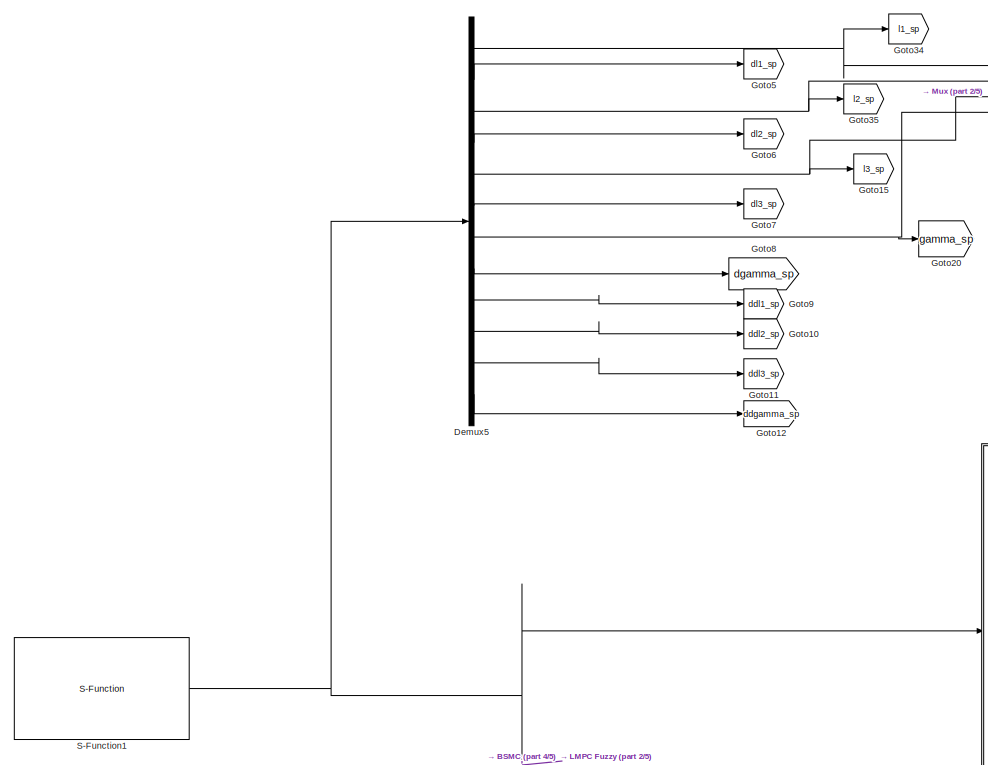
[diagram: root canvas - part 1/5, top left region]
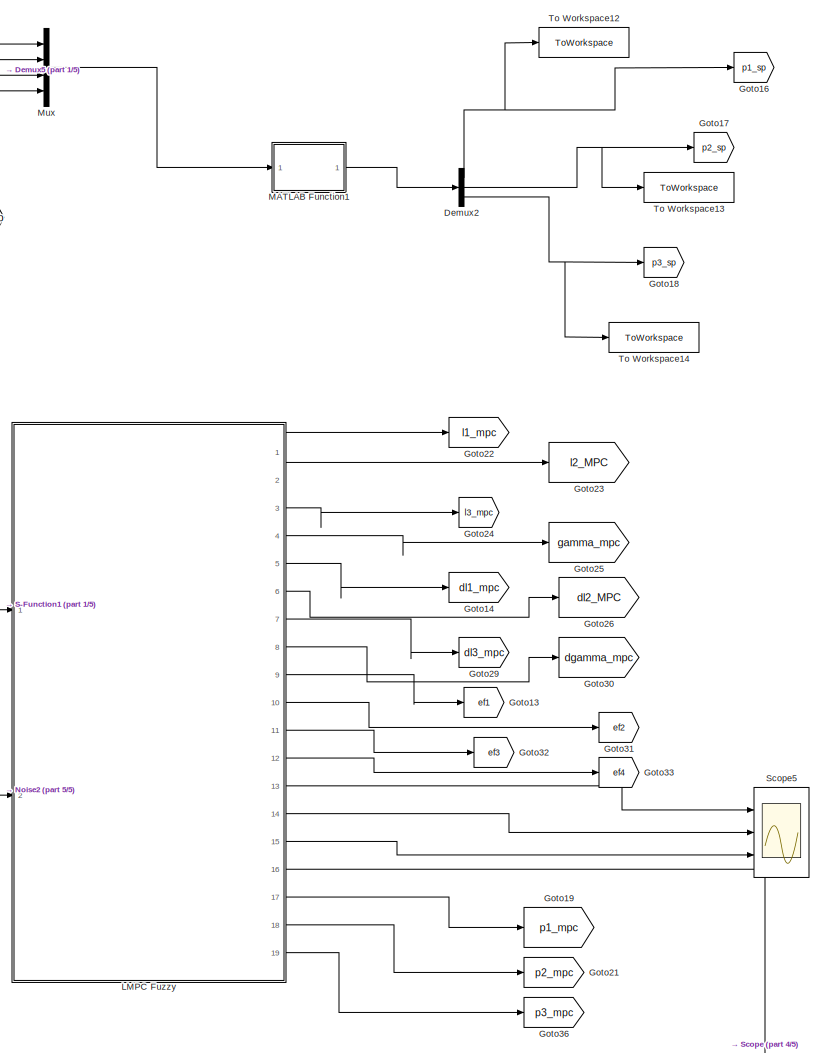
[diagram: root canvas - part 2/5, top center region]
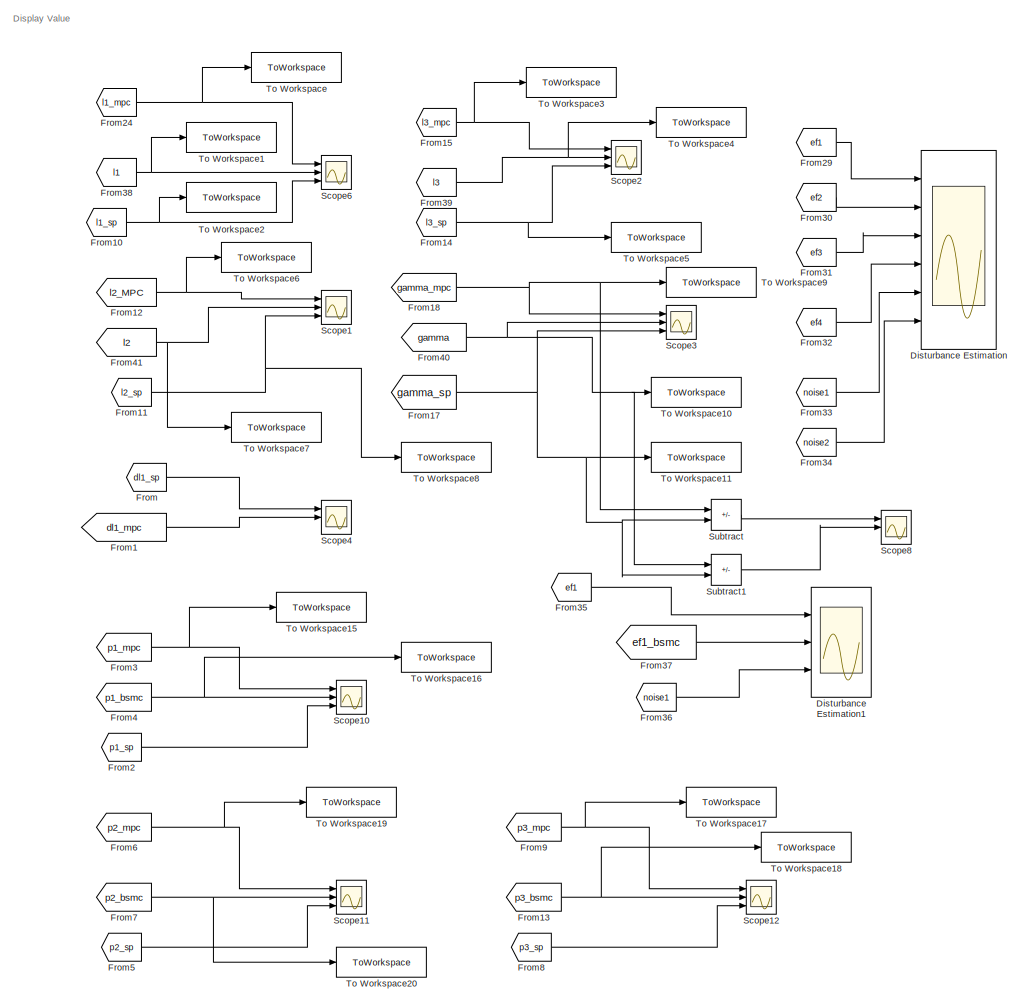
[diagram: root canvas - part 3/5, bottom right region]
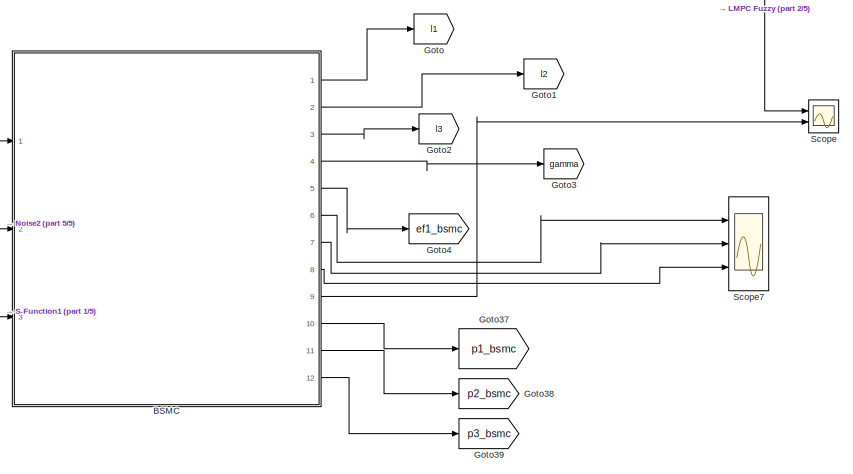
[diagram: root canvas - part 4/5, bottom center region]
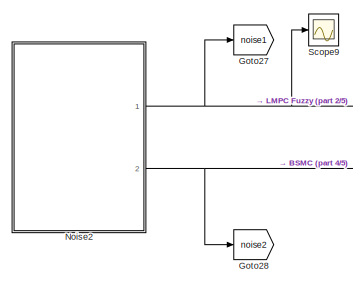
[diagram: root canvas - part 5/5, bottom left region]
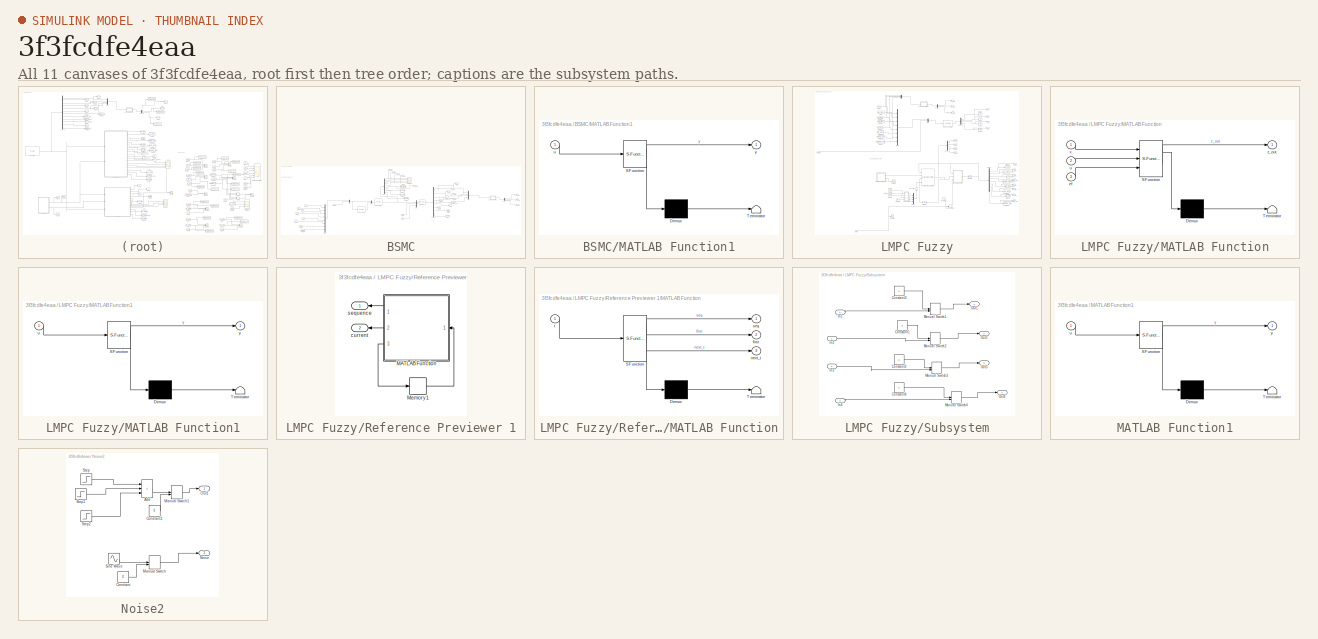
[diagram: thumbnail index - all 11 canvases of the model, root first then tree order]
MODEL slx_3f3fcdfe4eaa
KIND model
CONFIG AbsTol = auto
CONFIG EnableMultiTasking = off
CONFIG FixedStep = Ts
CONFIG MaxStep = auto
CONFIG MinStep = auto
CONFIG RelTol = 1e-3
CONFIG SampleTimeConstraint = Unconstrained
CONFIG SolverName = ode5
CONFIG StartTime = 0.0
CONFIG StopTime = 5
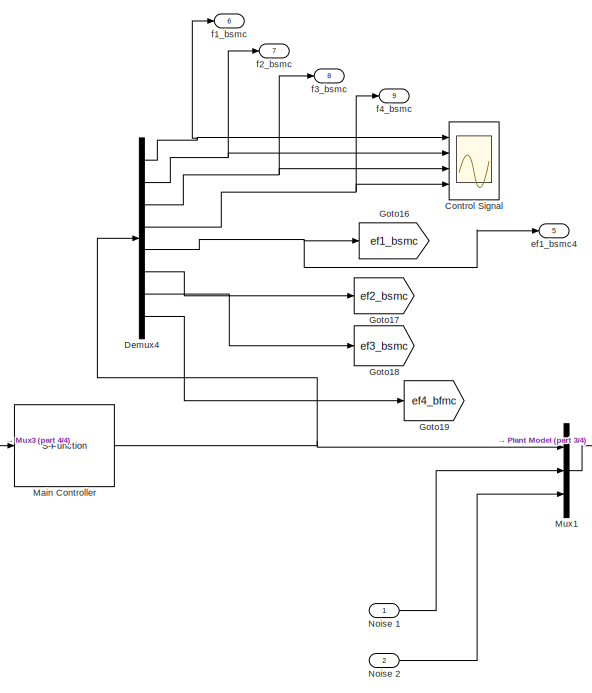
[diagram: BSMC - part 1/4, center side, full height]
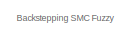
[diagram: BSMC - part 2/4, top left region]
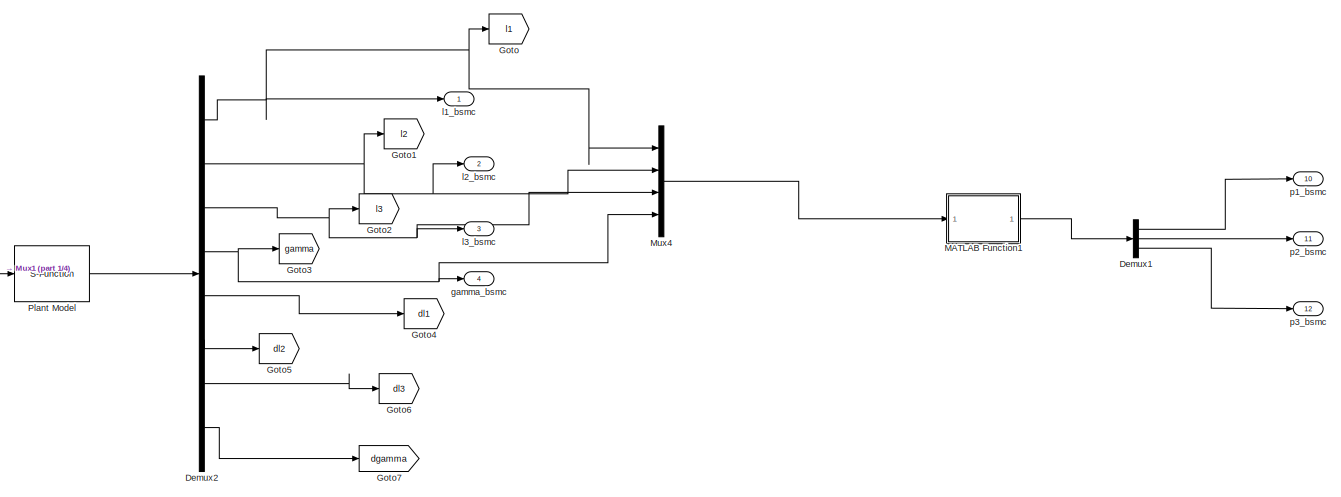
[diagram: BSMC - part 3/4, middle right region]
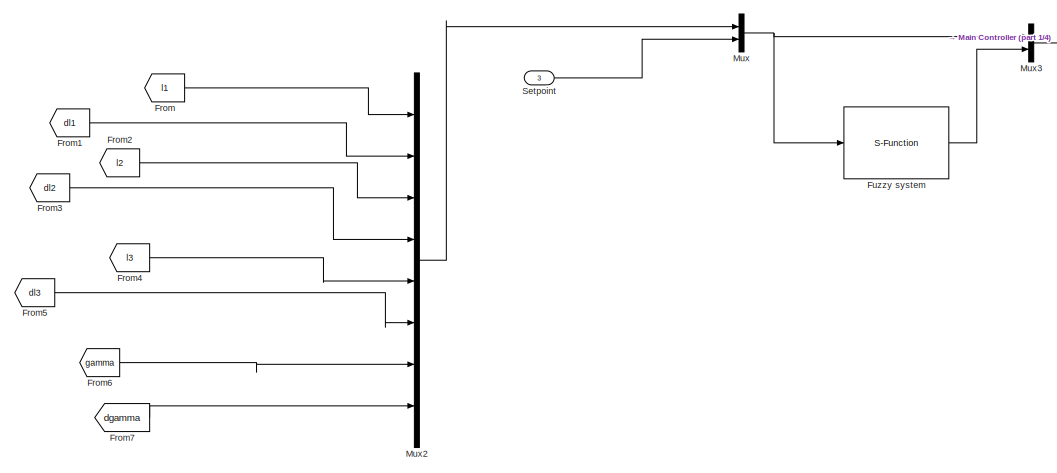
[diagram: BSMC - part 4/4, bottom left region]
BLOCK [SubSystem] BSMC
  Ports = [3, 12]
  RequestExecContextInheritance = off
BLOCK [Scope] BSMC/Control Signal
  Floating = off
  NumInputPorts = 4
  Ports = [4]
  ScopeSpecificationString = Simulink.scopes.TimeScopeBlockCfg('CurrentConfiguration', extmgr.ConfigurationSet(extmgr.Configuration('Core','General UI',true),extmgr.Configuration('Core','Source UI',true),extmgr.Configuration('Sources','WiredSimulink',true,'DataLoggingVariableName','ScopeData1'),extmgr.Configuration('Visuals','Time Domain',true,'SerializedDisplays',{struct('MinYLimReal','-9.11577','MaxYLimReal','9.09701','YLab...<+1479ch>
BLOCK [Demux] BSMC/Demux1
  Outputs = 3
  Ports = [1, 3]
BLOCK [Demux] BSMC/Demux2
  Outputs = 8
  Ports = [1, 8]
BLOCK [Demux] BSMC/Demux4
  Outputs = 8
  Ports = [1, 8]
BLOCK [From] BSMC/From
  GotoTag = l1
BLOCK [From] BSMC/From1
  GotoTag = dl1
BLOCK [From] BSMC/From2
  GotoTag = l2
BLOCK [From] BSMC/From3
  GotoTag = dl2
BLOCK [From] BSMC/From4
  GotoTag = l3
BLOCK [From] BSMC/From5
  GotoTag = dl3
BLOCK [From] BSMC/From6
  GotoTag = gamma
BLOCK [From] BSMC/From7
  GotoTag = dgamma
BLOCK [S-Function] BSMC/Fuzzy system
  EnableBusSupport = off
  FunctionName = cds_fuzzy_bsmc_sigma
  Ports = [1, 1]
  SFcnIsStateOwnerBlock = off
  SFunctionDeploymentMode = off
BLOCK [Goto] BSMC/Goto
  GotoTag = l1
BLOCK [Goto] BSMC/Goto1
  GotoTag = l2
BLOCK [Goto] BSMC/Goto16
  GotoTag = ef1_bsmc
BLOCK [Goto] BSMC/Goto17
  GotoTag = ef2_bsmc
BLOCK [Goto] BSMC/Goto18
  GotoTag = ef3_bsmc
BLOCK [Goto] BSMC/Goto19
  GotoTag = ef4_bfmc
BLOCK [Goto] BSMC/Goto2
  GotoTag = l3
BLOCK [Goto] BSMC/Goto3
  GotoTag = gamma
BLOCK [Goto] BSMC/Goto4
  GotoTag = dl1
BLOCK [Goto] BSMC/Goto5
  GotoTag = dl2
BLOCK [Goto] BSMC/Goto6
  GotoTag = dl3
BLOCK [Goto] BSMC/Goto7
  GotoTag = dgamma
BLOCK [SubSystem] BSMC/MATLAB Function1
  ErrorFcn = Stateflow.Translate.translate
  PermitHierarchicalResolution = ExplicitOnly
  Ports = [1, 1]
  RequestExecContextInheritance = off
  SFBlockType = MATLAB Function
  TreatAsAtomicUnit = on
BLOCK [Demux] BSMC/MATLAB Function1/ Demux 
  Outputs = 1
  Ports = [1, 1]
BLOCK [S-Function] BSMC/MATLAB Function1/ SFunction 
  EnableBusSupport = on
  FunctionName = sf_sfun
  PortCounts = [1 2]
  Ports = [1, 2]
  SFcnIsStateOwnerBlock = off
  SFunctionDeploymentMode = off
  Tag = Stateflow S-Function 4
BLOCK [Terminator] BSMC/MATLAB Function1/ Terminator 
BLOCK [Inport] BSMC/MATLAB Function1/u
BLOCK [Outport] BSMC/MATLAB Function1/y
BLOCK [S-Function] BSMC/Main Controller
  EnableBusSupport = off
  FunctionName = cds_main_bsmc_sigma
  Ports = [1, 1]
  SFcnIsStateOwnerBlock = off
  SFunctionDeploymentMode = off
BLOCK [Mux] BSMC/Mux
  DisplayOption = bar
  Inputs = 2
  Ports = [2, 1]
BLOCK [Mux] BSMC/Mux1
  DisplayOption = bar
  Inputs = 3
  Ports = [3, 1]
BLOCK [Mux] BSMC/Mux2
  DisplayOption = bar
  Inputs = 8
  Ports = [8, 1]
BLOCK [Mux] BSMC/Mux3
  DisplayOption = bar
  Inputs = 2
  Ports = [2, 1]
BLOCK [Mux] BSMC/Mux4
  DisplayOption = bar
  Ports = [4, 1]
BLOCK [Inport] BSMC/Noise 1
BLOCK [Inport] BSMC/Noise 2
  Port = 2
BLOCK [S-Function] BSMC/Plant Model
  EnableBusSupport = off
  FunctionName = cds_plant_sigma
  Ports = [1, 1]
  SFcnIsStateOwnerBlock = off
  SFunctionDeploymentMode = off
BLOCK [Inport] BSMC/Setpoint
  Port = 3
BLOCK [Outport] BSMC/ef1_bsmc4
  Port = 5
BLOCK [Outport] BSMC/f1_bsmc
  Port = 6
BLOCK [Outport] BSMC/f2_bsmc
  Port = 7
BLOCK [Outport] BSMC/f3_bsmc
  Port = 8
BLOCK [Outport] BSMC/f4_bsmc
  Port = 9
BLOCK [Outport] BSMC/gamma_bsmc
  Port = 4
BLOCK [Outport] BSMC/l1_bsmc
BLOCK [Outport] BSMC/l2_bsmc
  Port = 2
BLOCK [Outport] BSMC/l3_bsmc
  Port = 3
BLOCK [Outport] BSMC/p1_bsmc
  Port = 10
BLOCK [Outport] BSMC/p2_bsmc
  Port = 11
BLOCK [Outport] BSMC/p3_bsmc
  Port = 12
BLOCK [Demux] Demux2
  Outputs = 3
  Ports = [1, 3]
BLOCK [Demux] Demux5
  Outputs = 12
  Ports = [1, 12]
BLOCK [Scope] Disturbance Estimation
  Floating = off
  NumInputPorts = 6
  Ports = [6]
  ScopeSpecificationString = Simulink.scopes.TimeScopeBlockCfg('CurrentConfiguration', extmgr.ConfigurationSet(extmgr.Configuration('Core','General UI',true),extmgr.Configuration('Core','Source UI',true),extmgr.Configuration('Sources','WiredSimulink',true,'DataLoggingVariableName','ScopeData3'),extmgr.Configuration('Visuals','Time Domain',true,'SerializedDisplays',{struct('MinYLimReal','-41.59673','MaxYLimReal','73.97439','YL...<+1641ch>
BLOCK [Scope] Disturbance Estimation1
  Floating = off
  NumInputPorts = 3
  Ports = [3]
  ScopeSpecificationString = Simulink.scopes.TimeScopeBlockCfg('CurrentConfiguration', extmgr.ConfigurationSet(extmgr.Configuration('Core','General UI',true,'FigureColor',[1 1 1]),extmgr.Configuration('Core','Source UI',true),extmgr.Configuration('Sources','WiredSimulink',true),extmgr.Configuration('Visuals','Time Domain',true,'SerializedDisplays',{struct('MinYLimReal','-55.28582','MaxYLimReal','90.7569','YLabelReal','','MinY...<+1863ch>
BLOCK [From] From
  GotoTag = dl1_sp
BLOCK [From] From1
  GotoTag = dl1_mpc
BLOCK [From] From10
  GotoTag = l1_sp
BLOCK [From] From11
  GotoTag = l2_sp
BLOCK [From] From12
  GotoTag = l2_MPC
BLOCK [From] From13
  GotoTag = p3_bsmc
BLOCK [From] From14
  GotoTag = l3_sp
BLOCK [From] From15
  GotoTag = l3_mpc
BLOCK [From] From17
  GotoTag = gamma_sp
BLOCK [From] From18
  GotoTag = gamma_mpc
BLOCK [From] From2
  GotoTag = p1_sp
BLOCK [From] From24
  GotoTag = l1_mpc
BLOCK [From] From29
  GotoTag = ef1
BLOCK [From] From3
  GotoTag = p1_mpc
BLOCK [From] From30
  GotoTag = ef2
BLOCK [From] From31
  GotoTag = ef3
BLOCK [From] From32
  GotoTag = ef4
BLOCK [From] From33
  GotoTag = noise1
BLOCK [From] From34
  GotoTag = noise2
BLOCK [From] From35
  GotoTag = ef1
BLOCK [From] From36
  GotoTag = noise1
BLOCK [From] From37
  GotoTag = ef1_bsmc
BLOCK [From] From38
  GotoTag = l1
BLOCK [From] From39
  GotoTag = l3
BLOCK [From] From4
  GotoTag = p1_bsmc
BLOCK [From] From40
  GotoTag = gamma
BLOCK [From] From41
  GotoTag = l2
BLOCK [From] From5
  GotoTag = p2_sp
BLOCK [From] From6
  GotoTag = p2_mpc
BLOCK [From] From7
  GotoTag = p2_bsmc
BLOCK [From] From8
  GotoTag = p3_sp
BLOCK [From] From9
  GotoTag = p3_mpc
BLOCK [Goto] Goto
  GotoTag = l1
BLOCK [Goto] Goto1
  GotoTag = l2
BLOCK [Goto] Goto10
  GotoTag = ddl2_sp
BLOCK [Goto] Goto11
  GotoTag = ddl3_sp
BLOCK [Goto] Goto12
  GotoTag = ddgamma_sp
BLOCK [Goto] Goto13
  GotoTag = ef1
BLOCK [Goto] Goto14
  GotoTag = dl1_mpc
BLOCK [Goto] Goto15
  GotoTag = l3_sp
BLOCK [Goto] Goto16
  GotoTag = p1_sp
BLOCK [Goto] Goto17
  GotoTag = p2_sp
BLOCK [Goto] Goto18
  GotoTag = p3_sp
BLOCK [Goto] Goto19
  GotoTag = p1_mpc
BLOCK [Goto] Goto2
  GotoTag = l3
BLOCK [Goto] Goto20
  GotoTag = gamma_sp
BLOCK [Goto] Goto21
  GotoTag = p2_mpc
BLOCK [Goto] Goto22
  GotoTag = l1_mpc
BLOCK [Goto] Goto23
  GotoTag = l2_MPC
BLOCK [Goto] Goto24
  GotoTag = l3_mpc
BLOCK [Goto] Goto25
  GotoTag = gamma_mpc
BLOCK [Goto] Goto26
  GotoTag = dl2_MPC
BLOCK [Goto] Goto27
  GotoTag = noise1
BLOCK [Goto] Goto28
  GotoTag = noise2
BLOCK [Goto] Goto29
  GotoTag = dl3_mpc
BLOCK [Goto] Goto3
  GotoTag = gamma
BLOCK [Goto] Goto30
  GotoTag = dgamma_mpc
BLOCK [Goto] Goto31
  GotoTag = ef2
BLOCK [Goto] Goto32
  GotoTag = ef3
BLOCK [Goto] Goto33
  GotoTag = ef4
BLOCK [Goto] Goto34
  GotoTag = l1_sp
BLOCK [Goto] Goto35
  GotoTag = l2_sp
BLOCK [Goto] Goto36
  GotoTag = p3_mpc
BLOCK [Goto] Goto37
  GotoTag = p1_bsmc
BLOCK [Goto] Goto38
  GotoTag = p2_bsmc
BLOCK [Goto] Goto39
  GotoTag = p3_bsmc
BLOCK [Goto] Goto4
  GotoTag = ef1_bsmc
BLOCK [Goto] Goto5
  GotoTag = dl1_sp
BLOCK [Goto] Goto6
  GotoTag = dl2_sp
BLOCK [Goto] Goto7
  GotoTag = dl3_sp
BLOCK [Goto] Goto8
  GotoTag = dgamma_sp
BLOCK [Goto] Goto9
  GotoTag = ddl1_sp
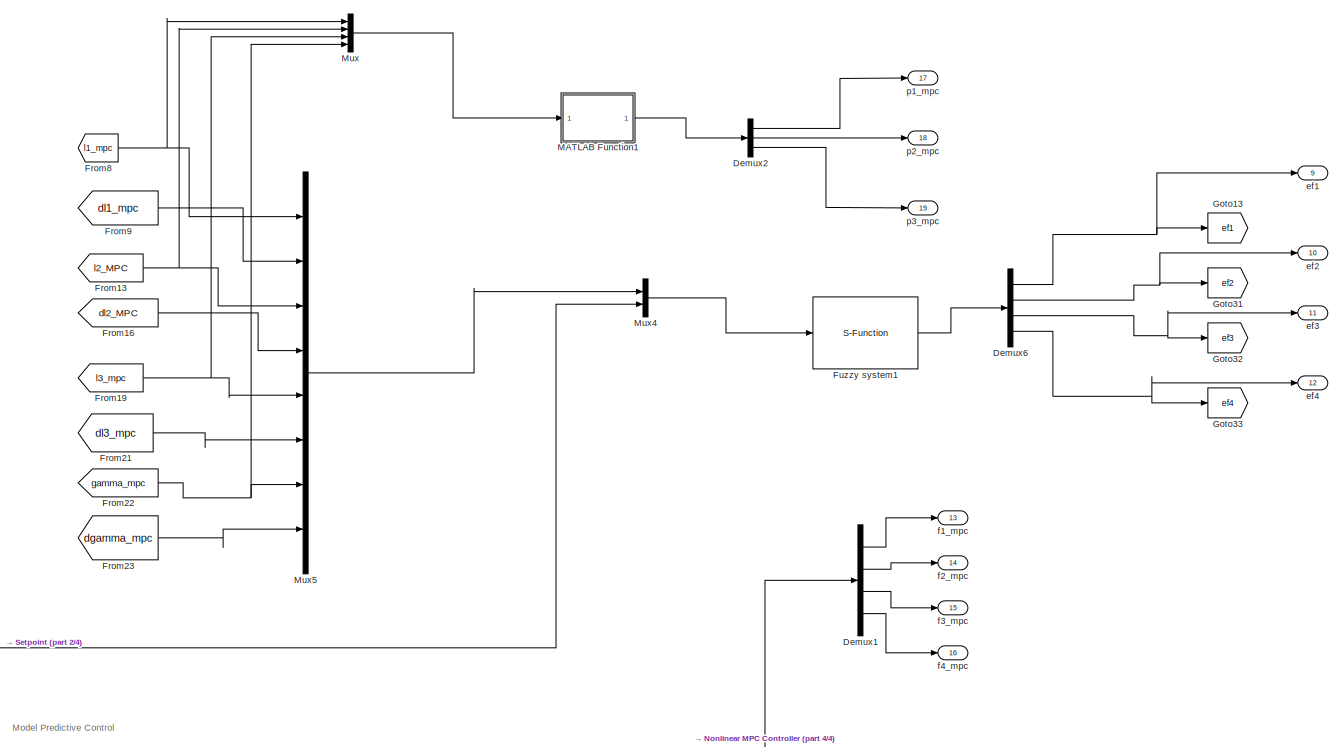
[diagram: LMPC Fuzzy - part 1/4, top center region]
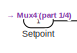
[diagram: LMPC Fuzzy - part 2/4, middle left region]
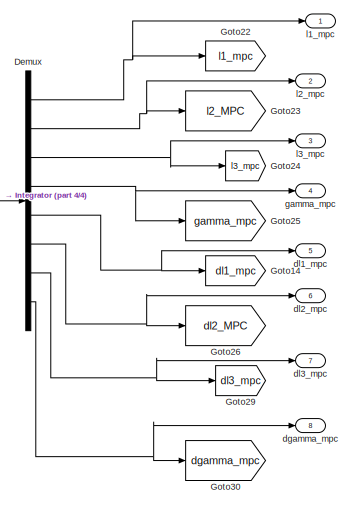
[diagram: LMPC Fuzzy - part 3/4, middle right region]
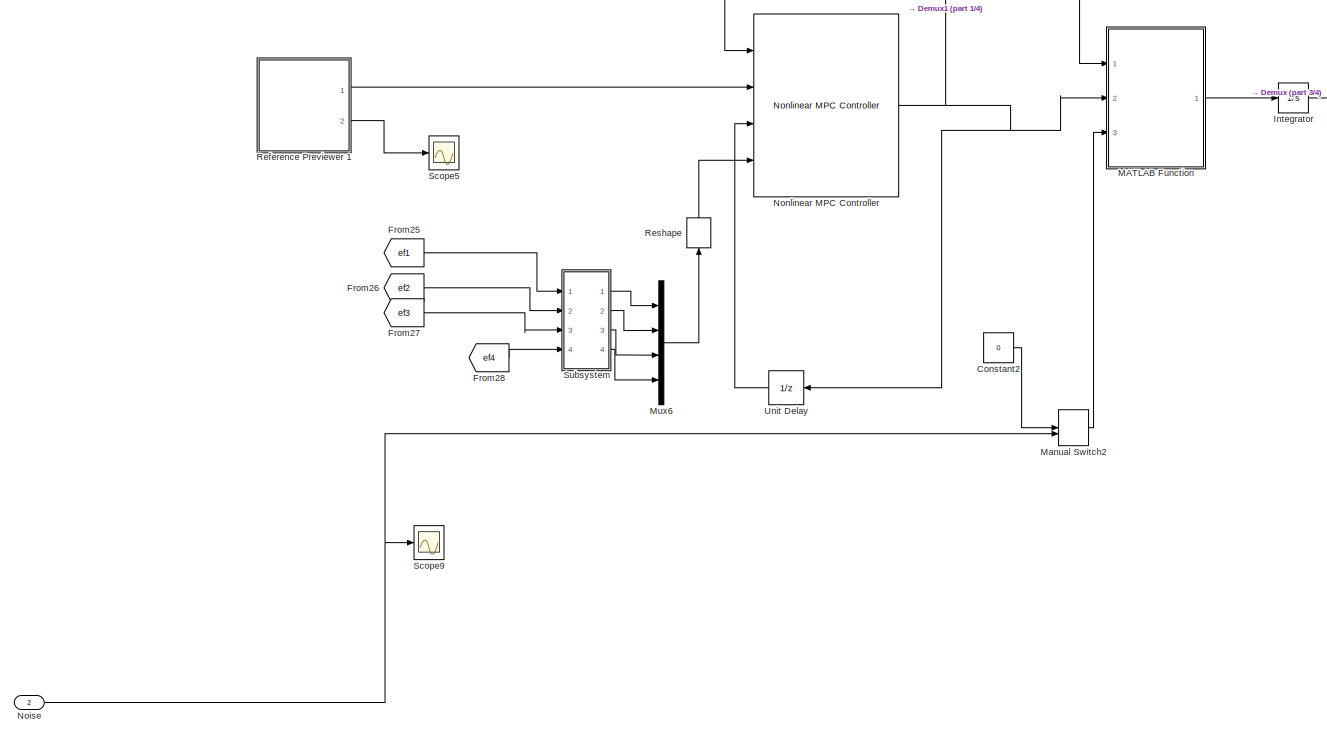
[diagram: LMPC Fuzzy - part 4/4, bottom center region]
BLOCK [SubSystem] LMPC Fuzzy
  Ports = [2, 19]
  RequestExecContextInheritance = off
BLOCK [Constant] LMPC Fuzzy/Constant2
  Value = 0
BLOCK [Demux] LMPC Fuzzy/Demux
  Outputs = 8
  Ports = [1, 8]
BLOCK [Demux] LMPC Fuzzy/Demux1
  Ports = [1, 4]
BLOCK [Demux] LMPC Fuzzy/Demux2
  Outputs = 3
  Ports = [1, 3]
BLOCK [Demux] LMPC Fuzzy/Demux6
  Ports = [1, 4]
BLOCK [From] LMPC Fuzzy/From13
  GotoTag = l2_MPC
BLOCK [From] LMPC Fuzzy/From16
  GotoTag = dl2_MPC
BLOCK [From] LMPC Fuzzy/From19
  GotoTag = l3_mpc
BLOCK [From] LMPC Fuzzy/From21
  GotoTag = dl3_mpc
BLOCK [From] LMPC Fuzzy/From22
  GotoTag = gamma_mpc
BLOCK [From] LMPC Fuzzy/From23
  GotoTag = dgamma_mpc
BLOCK [From] LMPC Fuzzy/From25
  GotoTag = ef1
BLOCK [From] LMPC Fuzzy/From26
  GotoTag = ef2
BLOCK [From] LMPC Fuzzy/From27
  GotoTag = ef3
BLOCK [From] LMPC Fuzzy/From28
  GotoTag = ef4
BLOCK [From] LMPC Fuzzy/From8
  GotoTag = l1_mpc
BLOCK [From] LMPC Fuzzy/From9
  GotoTag = dl1_mpc
BLOCK [S-Function] LMPC Fuzzy/Fuzzy system1
  EnableBusSupport = off
  FunctionName = cds_fuzzy_l_sigma
  Ports = [1, 1]
  SFcnIsStateOwnerBlock = off
  SFunctionDeploymentMode = off
BLOCK [Goto] LMPC Fuzzy/Goto13
  GotoTag = ef1
BLOCK [Goto] LMPC Fuzzy/Goto14
  GotoTag = dl1_mpc
BLOCK [Goto] LMPC Fuzzy/Goto22
  GotoTag = l1_mpc
BLOCK [Goto] LMPC Fuzzy/Goto23
  GotoTag = l2_MPC
BLOCK [Goto] LMPC Fuzzy/Goto24
  GotoTag = l3_mpc
BLOCK [Goto] LMPC Fuzzy/Goto25
  GotoTag = gamma_mpc
BLOCK [Goto] LMPC Fuzzy/Goto26
  GotoTag = dl2_MPC
BLOCK [Goto] LMPC Fuzzy/Goto29
  GotoTag = dl3_mpc
BLOCK [Goto] LMPC Fuzzy/Goto30
  GotoTag = dgamma_mpc
BLOCK [Goto] LMPC Fuzzy/Goto31
  GotoTag = ef2
BLOCK [Goto] LMPC Fuzzy/Goto32
  GotoTag = ef3
BLOCK [Goto] LMPC Fuzzy/Goto33
  GotoTag = ef4
BLOCK [Integrator] LMPC Fuzzy/Integrator
  InitialCondition = x0
  Ports = [1, 1]
BLOCK [SubSystem] LMPC Fuzzy/MATLAB Function
  ErrorFcn = Stateflow.Translate.translate
  PermitHierarchicalResolution = ExplicitOnly
  Ports = [3, 1]
  RequestExecContextInheritance = off
  SFBlockType = MATLAB Function
  TreatAsAtomicUnit = on
BLOCK [Demux] LMPC Fuzzy/MATLAB Function/ Demux 
  Outputs = 1
  Ports = [1, 1]
BLOCK [S-Function] LMPC Fuzzy/MATLAB Function/ SFunction 
  EnableBusSupport = on
  FunctionName = sf_sfun
  PortCounts = [3 2]
  Ports = [3, 2]
  SFcnIsStateOwnerBlock = off
  SFunctionDeploymentMode = off
  Tag = Stateflow S-Function 2
BLOCK [Terminator] LMPC Fuzzy/MATLAB Function/ Terminator 
BLOCK [Inport] LMPC Fuzzy/MATLAB Function/ef
  Port = 3
BLOCK [Inport] LMPC Fuzzy/MATLAB Function/u
  Port = 2
BLOCK [Inport] LMPC Fuzzy/MATLAB Function/x
BLOCK [Outport] LMPC Fuzzy/MATLAB Function/z_out
BLOCK [SubSystem] LMPC Fuzzy/MATLAB Function1
  ErrorFcn = Stateflow.Translate.translate
  PermitHierarchicalResolution = ExplicitOnly
  Ports = [1, 1]
  RequestExecContextInheritance = off
  SFBlockType = MATLAB Function
  TreatAsAtomicUnit = on
BLOCK [Demux] LMPC Fuzzy/MATLAB Function1/ Demux 
  Outputs = 1
  Ports = [1, 1]
BLOCK [S-Function] LMPC Fuzzy/MATLAB Function1/ SFunction 
  EnableBusSupport = on
  FunctionName = sf_sfun
  PortCounts = [1 2]
  Ports = [1, 2]
  SFcnIsStateOwnerBlock = off
  SFunctionDeploymentMode = off
  Tag = Stateflow S-Function 1
BLOCK [Terminator] LMPC Fuzzy/MATLAB Function1/ Terminator 
BLOCK [Inport] LMPC Fuzzy/MATLAB Function1/u
BLOCK [Outport] LMPC Fuzzy/MATLAB Function1/y
BLOCK [ManualSwitch] LMPC Fuzzy/Manual Switch2
  CurrentSetting = 0
BLOCK [Mux] LMPC Fuzzy/Mux
  DisplayOption = bar
  Ports = [4, 1]
BLOCK [Mux] LMPC Fuzzy/Mux4
  DisplayOption = bar
  Inputs = 2
  Ports = [2, 1]
BLOCK [Mux] LMPC Fuzzy/Mux5
  DisplayOption = bar
  Inputs = 8
  Ports = [8, 1]
BLOCK [Mux] LMPC Fuzzy/Mux6
  DisplayOption = bar
  Ports = [4, 1]
BLOCK [Inport] LMPC Fuzzy/Noise
  Port = 2
BLOCK [Reference] LMPC Fuzzy/Nonlinear MPC Controller  REF=mpclib/Nonlinear MPC Controller  (lib defined in mdl_ae329e0e0455)
  Ports = [4, 1]
  SCDEnableBlockLinearizationSpecification = on
  SourceBlock = mpclib/Nonlinear MPC Controller
  SourceProductBaseCode = MP
  SourceType = NonlinearMPC
BLOCK [SubSystem] LMPC Fuzzy/Reference Previewer 1
  Ports = [0, 2]
  RequestExecContextInheritance = off
BLOCK [SubSystem] LMPC Fuzzy/Reference Previewer 1/MATLAB Function
  ErrorFcn = Stateflow.Translate.translate
  PermitHierarchicalResolution = ExplicitOnly
  Ports = [1, 3]
  RequestExecContextInheritance = off
  SFBlockType = MATLAB Function
  TreatAsAtomicUnit = on
BLOCK [Demux] LMPC Fuzzy/Reference Previewer 1/MATLAB Function/ Demux 
  Outputs = 1
  Ports = [1, 1]
BLOCK [S-Function] LMPC Fuzzy/Reference Previewer 1/MATLAB Function/ SFunction 
  EnableBusSupport = on
  FunctionName = sf_sfun
  Parameters = data,steps
  PortCounts = [1 4]
  Ports = [1, 4]
  SFcnIsStateOwnerBlock = off
  SFunctionDeploymentMode = off
  Tag = Stateflow S-Function 3
BLOCK [Terminator] LMPC Fuzzy/Reference Previewer 1/MATLAB Function/ Terminator 
BLOCK [Outport] LMPC Fuzzy/Reference Previewer 1/MATLAB Function/first
  Port = 2
  VectorParamsAs1DForOutWhenUnconnected = off
BLOCK [Outport] LMPC Fuzzy/Reference Previewer 1/MATLAB Function/next_t
  Port = 3
  VectorParamsAs1DForOutWhenUnconnected = off
BLOCK [Outport] LMPC Fuzzy/Reference Previewer 1/MATLAB Function/seq
  VectorParamsAs1DForOutWhenUnconnected = off
BLOCK [Inport] LMPC Fuzzy/Reference Previewer 1/MATLAB Function/t
BLOCK [Memory] LMPC Fuzzy/Reference Previewer 1/Memory1
  InheritSampleTime = on
  LinearizeAsDelay = on
BLOCK [Outport] LMPC Fuzzy/Reference Previewer 1/current
  Port = 2
  VectorParamsAs1DForOutWhenUnconnected = off
BLOCK [Outport] LMPC Fuzzy/Reference Previewer 1/sequence
  VectorParamsAs1DForOutWhenUnconnected = off
BLOCK [Reshape] LMPC Fuzzy/Reshape
  NameLocation = right
  OutputDimensionality = Row vector (2-D)
  Ports = [1, 1]
BLOCK [Scope] LMPC Fuzzy/Scope5
  Floating = off
  NumInputPorts = 1
  Ports = [1]
  ScopeSpecificationString = Simulink.scopes.TimeScopeBlockCfg('CurrentConfiguration', extmgr.ConfigurationSet(extmgr.Configuration('Core','General UI',true,'FigureColor',[1 1 1]),extmgr.Configuration('Core','Source UI',true),extmgr.Configuration('Sources','WiredSimulink',true,'DataLoggingVariableName','ScopeData9'),extmgr.Configuration('Visuals','Time Domain',true,'SerializedDisplays',{struct('MinYLimReal','-42.5','MaxYLimRe...<+1667ch>
BLOCK [Scope] LMPC Fuzzy/Scope9
  Floating = off
  NumInputPorts = 1
  Ports = [1]
  ScopeSpecificationString = Simulink.scopes.TimeScopeBlockCfg('CurrentConfiguration', extmgr.ConfigurationSet(extmgr.Configuration('Core','General UI',true,'FigureColor',[1 1 1]),extmgr.Configuration('Core','Source UI',true),extmgr.Configuration('Sources','WiredSimulink',true,'DataLoggingVariableName','ScopeData11'),extmgr.Configuration('Visuals','Time Domain',true,'SerializedDisplays',{struct('MinYLimReal','-42.5','MaxYLimR...<+1668ch>
BLOCK [Inport] LMPC Fuzzy/Setpoint
BLOCK [SubSystem] LMPC Fuzzy/Subsystem
  Ports = [4, 4]
  RequestExecContextInheritance = off
BLOCK [Constant] LMPC Fuzzy/Subsystem/Constant1
  Value = 0
BLOCK [Constant] LMPC Fuzzy/Subsystem/Constant2
  Value = 0
BLOCK [Constant] LMPC Fuzzy/Subsystem/Constant3
  Value = 0
BLOCK [Constant] LMPC Fuzzy/Subsystem/Constant4
  Value = 0
BLOCK [Inport] LMPC Fuzzy/Subsystem/In1
BLOCK [Inport] LMPC Fuzzy/Subsystem/In2
  Port = 2
BLOCK [Inport] LMPC Fuzzy/Subsystem/In3
  Port = 3
BLOCK [Inport] LMPC Fuzzy/Subsystem/In4
  Port = 4
BLOCK [ManualSwitch] LMPC Fuzzy/Subsystem/Manual Switch1
  CurrentSetting = 0
BLOCK [ManualSwitch] LMPC Fuzzy/Subsystem/Manual Switch2
  CurrentSetting = 0
BLOCK [ManualSwitch] LMPC Fuzzy/Subsystem/Manual Switch3
  CurrentSetting = 0
BLOCK [ManualSwitch] LMPC Fuzzy/Subsystem/Manual Switch4
BLOCK [Outport] LMPC Fuzzy/Subsystem/Out1
BLOCK [Outport] LMPC Fuzzy/Subsystem/Out2
  Port = 2
BLOCK [Outport] LMPC Fuzzy/Subsystem/Out3
  Port = 3
BLOCK [Outport] LMPC Fuzzy/Subsystem/Out4
  Port = 4
BLOCK [UnitDelay] LMPC Fuzzy/Unit Delay
  HasFrameUpgradeWarning = on
  InitialCondition = u0
  SampleTime = -1
BLOCK [Outport] LMPC Fuzzy/dgamma_mpc
  Port = 8
BLOCK [Outport] LMPC Fuzzy/dl1_mpc
  Port = 5
BLOCK [Outport] LMPC Fuzzy/dl2_mpc
  Port = 6
BLOCK [Outport] LMPC Fuzzy/dl3_mpc
  Port = 7
BLOCK [Outport] LMPC Fuzzy/ef1
  Port = 9
BLOCK [Outport] LMPC Fuzzy/ef2
  Port = 10
BLOCK [Outport] LMPC Fuzzy/ef3
  Port = 11
BLOCK [Outport] LMPC Fuzzy/ef4
  Port = 12
BLOCK [Outport] LMPC Fuzzy/f1_mpc
  Port = 13
BLOCK [Outport] LMPC Fuzzy/f2_mpc
  Port = 14
BLOCK [Outport] LMPC Fuzzy/f3_mpc
  Port = 15
BLOCK [Outport] LMPC Fuzzy/f4_mpc
  Port = 16
BLOCK [Outport] LMPC Fuzzy/gamma_mpc
  Port = 4
BLOCK [Outport] LMPC Fuzzy/l1_mpc
BLOCK [Outport] LMPC Fuzzy/l2_mpc
  Port = 2
BLOCK [Outport] LMPC Fuzzy/l3_mpc
  Port = 3
BLOCK [Outport] LMPC Fuzzy/p1_mpc
  Port = 17
BLOCK [Outport] LMPC Fuzzy/p2_mpc
  Port = 18
BLOCK [Outport] LMPC Fuzzy/p3_mpc
  Port = 19
BLOCK [SubSystem] MATLAB Function1
  ErrorFcn = Stateflow.Translate.translate
  PermitHierarchicalResolution = ExplicitOnly
  Ports = [1, 1]
  RequestExecContextInheritance = off
  SFBlockType = MATLAB Function
  TreatAsAtomicUnit = on
BLOCK [Demux] MATLAB Function1/ Demux 
  Outputs = 1
  Ports = [1, 1]
BLOCK [S-Function] MATLAB Function1/ SFunction 
  EnableBusSupport = on
  FunctionName = sf_sfun
  PortCounts = [1 2]
  Ports = [1, 2]
  SFcnIsStateOwnerBlock = off
  SFunctionDeploymentMode = off
  Tag = Stateflow S-Function 5
BLOCK [Terminator] MATLAB Function1/ Terminator 
BLOCK [Inport] MATLAB Function1/u
BLOCK [Outport] MATLAB Function1/y
BLOCK [Mux] Mux
  DisplayOption = bar
  Ports = [4, 1]
BLOCK [SubSystem] Noise2
  Ports = [0, 2]
  RequestExecContextInheritance = off
BLOCK [Sum] Noise2/Add
  IconShape = rectangular
  Inputs = +++
  Ports = [3, 1]
BLOCK [Constant] Noise2/Constant
  SampleTime = -1
  Value = 0
BLOCK [Constant] Noise2/Constant1
  SampleTime = -1
  Value = 0
BLOCK [ManualSwitch] Noise2/Manual Switch
  CurrentSetting = 0
BLOCK [ManualSwitch] Noise2/Manual Switch1
BLOCK [Outport] Noise2/Noise
  Port = 2
BLOCK [Outport] Noise2/Out1
BLOCK [Sin] Noise2/Sine Wave
  Amplitude = 25
  Bias = 25
  Frequency = 4
  Phase = pi/2
  Ports = [0, 1]
  SampleTime = 0
BLOCK [Step] Noise2/Step
  After = 50
  SampleTime = 0
BLOCK [Step] Noise2/Step1
  After = -80
  SampleTime = 0
  Time = 2
BLOCK [Step] Noise2/Step2
  After = 60
  SampleTime = 0
  Time = 4
BLOCK [S-Function] S-Function1
  EnableBusSupport = off
  FunctionName = cds_setpoint_mpc
  Ports = [0, 1]
  SFcnIsStateOwnerBlock = off
  SFunctionDeploymentMode = off
BLOCK [Scope] Scope
  Floating = off
  NumInputPorts = 2
  Ports = [2]
  ScopeSpecificationString = Simulink.scopes.TimeScopeBlockCfg('CurrentConfiguration', extmgr.ConfigurationSet(extmgr.Configuration('Core','General UI',true,'FigureColor',[1 1 1]),extmgr.Configuration('Core','Source UI',true),extmgr.Configuration('Sources','WiredSimulink',true,'DataLoggingVariableName','ScopeData12'),extmgr.Configuration('Visuals','Time Domain',true,'SerializedDisplays',{struct('MinYLimReal','-18.75','MaxYLim...<+1714ch>
BLOCK [Scope] Scope1
  Floating = off
  NumInputPorts = 3
  Ports = [3]
  ScopeSpecificationString = Simulink.scopes.TimeScopeBlockCfg('CurrentConfiguration', extmgr.ConfigurationSet(extmgr.Configuration('Core','General UI',true,'FigureColor',[1 1 1]),extmgr.Configuration('Core','Source UI',true),extmgr.Configuration('Sources','WiredSimulink',true,'DataLoggingVariableName','ScopeData5'),extmgr.Configuration('Visuals','Time Domain',true,'SerializedDisplays',{struct('MinYLimReal','0.4436','MaxYLimR...<+2297ch>
BLOCK [Scope] Scope10
  Floating = off
  NumInputPorts = 3
  Ports = [3]
  ScopeSpecificationString = Simulink.scopes.TimeScopeBlockCfg('CurrentConfiguration', extmgr.ConfigurationSet(extmgr.Configuration('Core','General UI',true,'FigureColor',[1 1 1]),extmgr.Configuration('Core','Source UI',true),extmgr.Configuration('Sources','WiredSimulink',true,'DataLoggingVariableName','ScopeData3'),extmgr.Configuration('Visuals','Time Domain',true,'SerializedDisplays',{struct('MinYLimReal','0.56465','MaxYLim...<+2301ch>
BLOCK [Scope] Scope11
  Floating = off
  NumInputPorts = 3
  Ports = [3]
  ScopeSpecificationString = Simulink.scopes.TimeScopeBlockCfg('CurrentConfiguration', extmgr.ConfigurationSet(extmgr.Configuration('Core','General UI',true,'FigureColor',[1 1 1]),extmgr.Configuration('Core','Source UI',true),extmgr.Configuration('Sources','WiredSimulink',true,'DataLoggingVariableName','ScopeData4'),extmgr.Configuration('Visuals','Time Domain',true,'SerializedDisplays',{struct('MinYLimReal','-0.13875','MaxYLi...<+2304ch>
BLOCK [Scope] Scope12
  Floating = off
  NumInputPorts = 3
  Ports = [3]
  ScopeSpecificationString = Simulink.scopes.TimeScopeBlockCfg('CurrentConfiguration', extmgr.ConfigurationSet(extmgr.Configuration('Core','General UI',true,'FigureColor',[1 1 1]),extmgr.Configuration('Core','Source UI',true),extmgr.Configuration('Sources','WiredSimulink',true,'DataLoggingVariableName','ScopeData5'),extmgr.Configuration('Visuals','Time Domain',true,'SerializedDisplays',{struct('MinYLimReal','-0.25604','MaxYLi...<+2305ch>
BLOCK [Scope] Scope2
  Floating = off
  NumInputPorts = 3
  Ports = [3]
  ScopeSpecificationString = Simulink.scopes.TimeScopeBlockCfg('CurrentConfiguration', extmgr.ConfigurationSet(extmgr.Configuration('Core','General UI',true,'FigureColor',[1 1 1]),extmgr.Configuration('Core','Source UI',true),extmgr.Configuration('Sources','WiredSimulink',true,'DataLoggingVariableName','ScopeData6'),extmgr.Configuration('Visuals','Time Domain',true,'SerializedDisplays',{struct('MinYLimReal','0.48318','MaxYLim...<+2301ch>
BLOCK [Scope] Scope3
  Floating = off
  NumInputPorts = 3
  Ports = [3]
  ScopeSpecificationString = Simulink.scopes.TimeScopeBlockCfg('CurrentConfiguration', extmgr.ConfigurationSet(extmgr.Configuration('Core','General UI',true,'FigureColor',[1 1 1]),extmgr.Configuration('Core','Source UI',true),extmgr.Configuration('Sources','WiredSimulink',true,'DataLoggingVariableName','ScopeData7'),extmgr.Configuration('Visuals','Time Domain',true,'SerializedDisplays',{struct('MinYLimReal','-0.11719','MaxYLi...<+2323ch>
BLOCK [Scope] Scope4
  Floating = off
  NumInputPorts = 3
  Ports = [3]
  ScopeSpecificationString = Simulink.scopes.TimeScopeBlockCfg('CurrentConfiguration', extmgr.ConfigurationSet(extmgr.Configuration('Core','General UI',true,'FigureColor',[1 1 1]),extmgr.Configuration('Core','Source UI',true),extmgr.Configuration('Sources','WiredSimulink',true,'DataLoggingVariableName','ScopeData4'),extmgr.Configuration('Visuals','Time Domain',true,'SerializedDisplays',{struct('MinYLimReal','-1.14408','MaxYLi...<+2305ch>
BLOCK [Scope] Scope5
  Floating = off
  NumInputPorts = 3
  Ports = [3]
  ScopeSpecificationString = Simulink.scopes.TimeScopeBlockCfg('CurrentConfiguration', extmgr.ConfigurationSet(extmgr.Configuration('Core','General UI',true,'FigureColor',[1 1 1]),extmgr.Configuration('Core','Source UI',true),extmgr.Configuration('Sources','WiredSimulink',true,'DataLoggingVariableName','ScopeData8'),extmgr.Configuration('Visuals','Time Domain',true,'SerializedDisplays',{struct('MinYLimReal','-94.93591','MaxYL...<+2330ch>
BLOCK [Scope] Scope6
  Floating = off
  NumInputPorts = 3
  Ports = [3]
  ScopeSpecificationString = Simulink.scopes.TimeScopeBlockCfg('CurrentConfiguration', extmgr.ConfigurationSet(extmgr.Configuration('Core','General UI',true,'FigureColor',[1 1 1]),extmgr.Configuration('Core','Source UI',true),extmgr.Configuration('Sources','WiredSimulink',true,'DataLoggingVariableName','ScopeData2'),extmgr.Configuration('Visuals','Time Domain',true,'SerializedDisplays',{struct('MinYLimReal','0.44386','MaxYLim...<+2269ch>
BLOCK [Scope] Scope7
  Floating = off
  NumInputPorts = 3
  Ports = [3]
  ScopeSpecificationString = Simulink.scopes.TimeScopeBlockCfg('CurrentConfiguration', extmgr.ConfigurationSet(extmgr.Configuration('Core','General UI',true,'FigureColor',[1 1 1]),extmgr.Configuration('Core','Source UI',true),extmgr.Configuration('Sources','WiredSimulink',true,'DataLoggingVariableName','ScopeData10'),extmgr.Configuration('Visuals','Time Domain',true,'SerializedDisplays',{struct('MinYLimReal','14.74455','MaxYL...<+2333ch>
BLOCK [Scope] Scope8
  Floating = off
  NumInputPorts = 3
  Ports = [3]
  ScopeSpecificationString = Simulink.scopes.TimeScopeBlockCfg('CurrentConfiguration', extmgr.ConfigurationSet(extmgr.Configuration('Core','General UI',true,'FigureColor',[1 1 1]),extmgr.Configuration('Core','Source UI',true),extmgr.Configuration('Sources','WiredSimulink',true,'DataLoggingVariableName','ScopeData1'),extmgr.Configuration('Visuals','Time Domain',true,'SerializedDisplays',{struct('MinYLimReal','-0.03206','MaxYLi...<+2326ch>
BLOCK [Scope] Scope9
  Floating = off
  NumInputPorts = 1
  Ports = [1]
  ScopeSpecificationString = Simulink.scopes.TimeScopeBlockCfg('CurrentConfiguration', extmgr.ConfigurationSet(extmgr.Configuration('Core','General UI',true,'FigureColor',[1 1 1]),extmgr.Configuration('Core','Source UI',true),extmgr.Configuration('Sources','WiredSimulink',true,'DataLoggingVariableName','ScopeData2'),extmgr.Configuration('Visuals','Time Domain',true,'SerializedDisplays',{struct('MinYLimReal','-40.00000','MaxYL...<+1525ch>
BLOCK [Sum] Subtract
  IconShape = rectangular
  Inputs = +-
  Ports = [2, 1]
BLOCK [Sum] Subtract1
  IconShape = rectangular
  Inputs = +-
  Ports = [2, 1]
BLOCK [ToWorkspace] To Workspace
  FixptAsFi = on
  MaxDataPoints = inf
  Ports = [1]
  SampleTime = -1
  SaveFormat = Timeseries
  VariableName = l1_mpc
BLOCK [ToWorkspace] To Workspace1
  FixptAsFi = on
  MaxDataPoints = inf
  Ports = [1]
  SampleTime = -1
  SaveFormat = Timeseries
  VariableName = l1_bsmc
BLOCK [ToWorkspace] To Workspace10
  FixptAsFi = on
  MaxDataPoints = inf
  Ports = [1]
  SampleTime = -1
  SaveFormat = Timeseries
  VariableName = gamma_bsmc
BLOCK [ToWorkspace] To Workspace11
  FixptAsFi = on
  MaxDataPoints = inf
  Ports = [1]
  SampleTime = -1
  SaveFormat = Timeseries
  VariableName = gamma_sp
BLOCK [ToWorkspace] To Workspace12
  FixptAsFi = on
  MaxDataPoints = inf
  Ports = [1]
  SampleTime = -1
  SaveFormat = Timeseries
  VariableName = p1_sp
BLOCK [ToWorkspace] To Workspace13
  FixptAsFi = on
  MaxDataPoints = inf
  Ports = [1]
  SampleTime = -1
  SaveFormat = Timeseries
  VariableName = p2_sp
BLOCK [ToWorkspace] To Workspace14
  FixptAsFi = on
  MaxDataPoints = inf
  Ports = [1]
  SampleTime = -1
  SaveFormat = Timeseries
  VariableName = p3_sp
BLOCK [ToWorkspace] To Workspace15
  FixptAsFi = on
  MaxDataPoints = inf
  Ports = [1]
  SampleTime = -1
  SaveFormat = Timeseries
  VariableName = p1_mpc
BLOCK [ToWorkspace] To Workspace16
  FixptAsFi = on
  MaxDataPoints = inf
  Ports = [1]
  SampleTime = -1
  SaveFormat = Timeseries
  VariableName = p1_bsmc
BLOCK [ToWorkspace] To Workspace17
  FixptAsFi = on
  MaxDataPoints = inf
  Ports = [1]
  SampleTime = -1
  SaveFormat = Timeseries
  VariableName = p3_mpc
BLOCK [ToWorkspace] To Workspace18
  FixptAsFi = on
  MaxDataPoints = inf
  Ports = [1]
  SampleTime = -1
  SaveFormat = Timeseries
  VariableName = p3_bsmc
BLOCK [ToWorkspace] To Workspace19
  FixptAsFi = on
  MaxDataPoints = inf
  Ports = [1]
  SampleTime = -1
  SaveFormat = Timeseries
  VariableName = p2_mpc
BLOCK [ToWorkspace] To Workspace2
  FixptAsFi = on
  MaxDataPoints = inf
  Ports = [1]
  SampleTime = -1
  SaveFormat = Timeseries
  VariableName = l1_sp
BLOCK [ToWorkspace] To Workspace20
  FixptAsFi = on
  MaxDataPoints = inf
  Ports = [1]
  SampleTime = -1
  SaveFormat = Timeseries
  VariableName = p2_bsmc
BLOCK [ToWorkspace] To Workspace3
  FixptAsFi = on
  MaxDataPoints = inf
  Ports = [1]
  SampleTime = -1
  SaveFormat = Timeseries
  VariableName = l3_mpc
BLOCK [ToWorkspace] To Workspace4
  FixptAsFi = on
  MaxDataPoints = inf
  Ports = [1]
  SampleTime = -1
  SaveFormat = Timeseries
  VariableName = l3_bsmc
BLOCK [ToWorkspace] To Workspace5
  FixptAsFi = on
  MaxDataPoints = inf
  Ports = [1]
  SampleTime = -1
  SaveFormat = Timeseries
  VariableName = l3_sp
BLOCK [ToWorkspace] To Workspace6
  FixptAsFi = on
  MaxDataPoints = inf
  Ports = [1]
  SampleTime = -1
  SaveFormat = Timeseries
  VariableName = l2_mpc
BLOCK [ToWorkspace] To Workspace7
  FixptAsFi = on
  MaxDataPoints = inf
  Ports = [1]
  SampleTime = -1
  SaveFormat = Timeseries
  VariableName = l2_bsmc
BLOCK [ToWorkspace] To Workspace8
  FixptAsFi = on
  MaxDataPoints = inf
  Ports = [1]
  SampleTime = -1
  SaveFormat = Timeseries
  VariableName = l2_sp
BLOCK [ToWorkspace] To Workspace9
  FixptAsFi = on
  MaxDataPoints = inf
  Ports = [1]
  SampleTime = -1
  SaveFormat = Timeseries
  VariableName = gamma_mpc
ANNOTATION (root): Display Value
ANNOTATION BSMC: Backstepping SMC Fuzzy
ANNOTATION LMPC Fuzzy: Model Predictive Control
LINE BSMC/Demux1:1 -> BSMC/p1_bsmc:1
LINE BSMC/Demux1:2 -> BSMC/p2_bsmc:1
LINE BSMC/Demux1:3 -> BSMC/p3_bsmc:1
NET BSMC/Demux2:1 -> BSMC/Goto:1, BSMC/Mux4:1, BSMC/l1_bsmc:1
NET BSMC/Demux2:2 -> BSMC/Goto1:1, BSMC/Mux4:2, BSMC/l2_bsmc:1
NET BSMC/Demux2:3 -> BSMC/Goto2:1, BSMC/Mux4:3, BSMC/l3_bsmc:1
NET BSMC/Demux2:4 -> BSMC/Goto3:1, BSMC/Mux4:4, BSMC/gamma_bsmc:1
LINE BSMC/Demux2:5 -> BSMC/Goto4:1
LINE BSMC/Demux2:6 -> BSMC/Goto5:1
LINE BSMC/Demux2:7 -> BSMC/Goto6:1
LINE BSMC/Demux2:8 -> BSMC/Goto7:1
NET BSMC/Demux4:1 -> BSMC/Control Signal:1, BSMC/f1_bsmc:1
NET BSMC/Demux4:2 -> BSMC/Control Signal:2, BSMC/f2_bsmc:1
NET BSMC/Demux4:3 -> BSMC/Control Signal:3, BSMC/f3_bsmc:1
NET BSMC/Demux4:4 -> BSMC/Control Signal:4, BSMC/f4_bsmc:1
NET BSMC/Demux4:5 -> BSMC/Goto16:1, BSMC/ef1_bsmc4:1
LINE BSMC/Demux4:6 -> BSMC/Goto17:1
LINE BSMC/Demux4:7 -> BSMC/Goto18:1
LINE BSMC/Demux4:8 -> BSMC/Goto19:1
LINE BSMC/From1:1 -> BSMC/Mux2:2
LINE BSMC/From2:1 -> BSMC/Mux2:3
LINE BSMC/From3:1 -> BSMC/Mux2:4
LINE BSMC/From4:1 -> BSMC/Mux2:5
LINE BSMC/From5:1 -> BSMC/Mux2:6
LINE BSMC/From6:1 -> BSMC/Mux2:7
LINE BSMC/From7:1 -> BSMC/Mux2:8
LINE BSMC/From:1 -> BSMC/Mux2:1
LINE BSMC/Fuzzy system:1 -> BSMC/Mux3:2
LINE BSMC/MATLAB Function1:1 -> BSMC/Demux1:1
NET BSMC/Main Controller:1 -> BSMC/Demux4:1, BSMC/Mux1:1
LINE BSMC/Mux1:1 -> BSMC/Plant Model:1
LINE BSMC/Mux2:1 -> BSMC/Mux:1
LINE BSMC/Mux3:1 -> BSMC/Main Controller:1
LINE BSMC/Mux4:1 -> BSMC/MATLAB Function1:1
NET BSMC/Mux:1 -> BSMC/Fuzzy system:1, BSMC/Mux3:1
LINE BSMC/Noise 1:1 -> BSMC/Mux1:2
LINE BSMC/Noise 2:1 -> BSMC/Mux1:3
LINE BSMC/Plant Model:1 -> BSMC/Demux2:1
LINE BSMC/Setpoint:1 -> BSMC/Mux:2
LINE BSMC:1 -> Goto:1
LINE BSMC:10 -> Goto37:1
LINE BSMC:11 -> Goto38:1
LINE BSMC:12 -> Goto39:1
LINE BSMC:2 -> Goto1:1
LINE BSMC:3 -> Goto2:1
LINE BSMC:4 -> Goto3:1
LINE BSMC:5 -> Goto4:1
LINE BSMC:6 -> Scope7:1
LINE BSMC:7 -> Scope7:2
LINE BSMC:8 -> Scope7:3
LINE BSMC:9 -> Scope:2
NET Demux2:1 -> Goto16:1, To Workspace12:1
NET Demux2:2 -> Goto17:1, To Workspace13:1
NET Demux2:3 -> Goto18:1, To Workspace14:1
NET Demux5:1 -> Goto34:1, Mux:1
LINE Demux5:10 -> Goto10:1
LINE Demux5:11 -> Goto11:1
LINE Demux5:12 -> Goto12:1
LINE Demux5:2 -> Goto5:1
NET Demux5:3 -> Goto35:1, Mux:2
LINE Demux5:4 -> Goto6:1
NET Demux5:5 -> Goto15:1, Mux:3
LINE Demux5:6 -> Goto7:1
NET Demux5:7 -> Goto20:1, Mux:4
LINE Demux5:8 -> Goto8:1
LINE Demux5:9 -> Goto9:1
NET From10:1 -> Scope6:3, To Workspace2:1
NET From11:1 -> Scope1:3, To Workspace8:1
NET From12:1 -> Scope1:1, To Workspace6:1
NET From13:1 -> Scope12:2, To Workspace18:1
NET From14:1 -> Scope2:3, To Workspace5:1
NET From15:1 -> Scope2:1, To Workspace3:1
NET From17:1 -> Scope3:3, Subtract1:2, Subtract:2, To Workspace11:1
NET From18:1 -> Scope3:1, Subtract:1, To Workspace9:1
LINE From1:1 -> Scope4:2
NET From24:1 -> Scope6:1, To Workspace:1
LINE From29:1 -> Disturbance Estimation:1
LINE From2:1 -> Scope10:3
LINE From30:1 -> Disturbance Estimation:2
LINE From31:1 -> Disturbance Estimation:3
LINE From32:1 -> Disturbance Estimation:4
LINE From33:1 -> Disturbance Estimation:5
LINE From34:1 -> Disturbance Estimation:6
LINE From35:1 -> Disturbance Estimation1:1
LINE From36:1 -> Disturbance Estimation1:3
LINE From37:1 -> Disturbance Estimation1:2
NET From38:1 -> Scope6:2, To Workspace1:1
NET From39:1 -> Scope2:2, To Workspace4:1
NET From3:1 -> Scope10:1, To Workspace15:1
NET From40:1 -> Scope3:2, Subtract1:1, To Workspace10:1
NET From41:1 -> Scope1:2, To Workspace7:1
NET From4:1 -> Scope10:2, To Workspace16:1
LINE From5:1 -> Scope11:3
NET From6:1 -> Scope11:1, To Workspace19:1
NET From7:1 -> Scope11:2, To Workspace20:1
LINE From8:1 -> Scope12:3
NET From9:1 -> Scope12:1, To Workspace17:1
LINE From:1 -> Scope4:1
LINE LMPC Fuzzy/Constant2:1 -> LMPC Fuzzy/Manual Switch2:1
LINE LMPC Fuzzy/Demux1:1 -> LMPC Fuzzy/f1_mpc:1
LINE LMPC Fuzzy/Demux1:2 -> LMPC Fuzzy/f2_mpc:1
LINE LMPC Fuzzy/Demux1:3 -> LMPC Fuzzy/f3_mpc:1
LINE LMPC Fuzzy/Demux1:4 -> LMPC Fuzzy/f4_mpc:1
LINE LMPC Fuzzy/Demux2:1 -> LMPC Fuzzy/p1_mpc:1
LINE LMPC Fuzzy/Demux2:2 -> LMPC Fuzzy/p2_mpc:1
LINE LMPC Fuzzy/Demux2:3 -> LMPC Fuzzy/p3_mpc:1
NET LMPC Fuzzy/Demux6:1 -> LMPC Fuzzy/Goto13:1, LMPC Fuzzy/ef1:1
NET LMPC Fuzzy/Demux6:2 -> LMPC Fuzzy/Goto31:1, LMPC Fuzzy/ef2:1
NET LMPC Fuzzy/Demux6:3 -> LMPC Fuzzy/Goto32:1, LMPC Fuzzy/ef3:1
NET LMPC Fuzzy/Demux6:4 -> LMPC Fuzzy/Goto33:1, LMPC Fuzzy/ef4:1
NET LMPC Fuzzy/Demux:1 -> LMPC Fuzzy/Goto22:1, LMPC Fuzzy/l1_mpc:1
NET LMPC Fuzzy/Demux:2 -> LMPC Fuzzy/Goto23:1, LMPC Fuzzy/l2_mpc:1
NET LMPC Fuzzy/Demux:3 -> LMPC Fuzzy/Goto24:1, LMPC Fuzzy/l3_mpc:1
NET LMPC Fuzzy/Demux:4 -> LMPC Fuzzy/Goto25:1, LMPC Fuzzy/gamma_mpc:1
NET LMPC Fuzzy/Demux:5 -> LMPC Fuzzy/Goto14:1, LMPC Fuzzy/dl1_mpc:1
NET LMPC Fuzzy/Demux:6 -> LMPC Fuzzy/Goto26:1, LMPC Fuzzy/dl2_mpc:1
NET LMPC Fuzzy/Demux:7 -> LMPC Fuzzy/Goto29:1, LMPC Fuzzy/dl3_mpc:1
NET LMPC Fuzzy/Demux:8 -> LMPC Fuzzy/Goto30:1, LMPC Fuzzy/dgamma_mpc:1
NET LMPC Fuzzy/From13:1 -> LMPC Fuzzy/Mux5:3, LMPC Fuzzy/Mux:2
LINE LMPC Fuzzy/From16:1 -> LMPC Fuzzy/Mux5:4
NET LMPC Fuzzy/From19:1 -> LMPC Fuzzy/Mux5:5, LMPC Fuzzy/Mux:3
LINE LMPC Fuzzy/From21:1 -> LMPC Fuzzy/Mux5:6
NET LMPC Fuzzy/From22:1 -> LMPC Fuzzy/Mux5:7, LMPC Fuzzy/Mux:4
LINE LMPC Fuzzy/From23:1 -> LMPC Fuzzy/Mux5:8
LINE LMPC Fuzzy/From25:1 -> LMPC Fuzzy/Subsystem:1
LINE LMPC Fuzzy/From26:1 -> LMPC Fuzzy/Subsystem:2
LINE LMPC Fuzzy/From27:1 -> LMPC Fuzzy/Subsystem:3
LINE LMPC Fuzzy/From28:1 -> LMPC Fuzzy/Subsystem:4
NET LMPC Fuzzy/From8:1 -> LMPC Fuzzy/Mux5:1, LMPC Fuzzy/Mux:1
LINE LMPC Fuzzy/From9:1 -> LMPC Fuzzy/Mux5:2
LINE LMPC Fuzzy/Fuzzy system1:1 -> LMPC Fuzzy/Demux6:1
NET LMPC Fuzzy/Integrator:1 -> LMPC Fuzzy/Demux:1, LMPC Fuzzy/MATLAB Function:1, LMPC Fuzzy/Nonlinear MPC Controller:1
LINE LMPC Fuzzy/MATLAB Function1:1 -> LMPC Fuzzy/Demux2:1
LINE LMPC Fuzzy/MATLAB Function:1 -> LMPC Fuzzy/Integrator:1
LINE LMPC Fuzzy/Manual Switch2:1 -> LMPC Fuzzy/MATLAB Function:3
LINE LMPC Fuzzy/Mux4:1 -> LMPC Fuzzy/Fuzzy system1:1
LINE LMPC Fuzzy/Mux5:1 -> LMPC Fuzzy/Mux4:1
LINE LMPC Fuzzy/Mux6:1 -> LMPC Fuzzy/Reshape:1
LINE LMPC Fuzzy/Mux:1 -> LMPC Fuzzy/MATLAB Function1:1
NET LMPC Fuzzy/Noise:1 -> LMPC Fuzzy/Manual Switch2:2, LMPC Fuzzy/Scope9:1
NET LMPC Fuzzy/Nonlinear MPC Controller:1 -> LMPC Fuzzy/Demux1:1, LMPC Fuzzy/MATLAB Function:2, LMPC Fuzzy/Unit Delay:1
LINE LMPC Fuzzy/Reference Previewer 1/MATLAB Function:1 -> LMPC Fuzzy/Reference Previewer 1/sequence:1
LINE LMPC Fuzzy/Reference Previewer 1/MATLAB Function:2 -> LMPC Fuzzy/Reference Previewer 1/current:1
LINE LMPC Fuzzy/Reference Previewer 1/MATLAB Function:3 -> LMPC Fuzzy/Reference Previewer 1/Memory1:1
LINE LMPC Fuzzy/Reference Previewer 1/Memory1:1 -> LMPC Fuzzy/Reference Previewer 1/MATLAB Function:1
LINE LMPC Fuzzy/Reference Previewer 1:1 -> LMPC Fuzzy/Nonlinear MPC Controller:2
LINE LMPC Fuzzy/Reference Previewer 1:2 -> LMPC Fuzzy/Scope5:1
LINE LMPC Fuzzy/Reshape:1 -> LMPC Fuzzy/Nonlinear MPC Controller:4
LINE LMPC Fuzzy/Setpoint:1 -> LMPC Fuzzy/Mux4:2
LINE LMPC Fuzzy/Subsystem/Constant1:1 -> LMPC Fuzzy/Subsystem/Manual Switch2:1
LINE LMPC Fuzzy/Subsystem/Constant2:1 -> LMPC Fuzzy/Subsystem/Manual Switch3:1
LINE LMPC Fuzzy/Subsystem/Constant3:1 -> LMPC Fuzzy/Subsystem/Manual Switch1:1
LINE LMPC Fuzzy/Subsystem/Constant4:1 -> LMPC Fuzzy/Subsystem/Manual Switch4:1
LINE LMPC Fuzzy/Subsystem/In1:1 -> LMPC Fuzzy/Subsystem/Manual Switch1:2
LINE LMPC Fuzzy/Subsystem/In2:1 -> LMPC Fuzzy/Subsystem/Manual Switch2:2
LINE LMPC Fuzzy/Subsystem/In3:1 -> LMPC Fuzzy/Subsystem/Manual Switch3:2
LINE LMPC Fuzzy/Subsystem/In4:1 -> LMPC Fuzzy/Subsystem/Manual Switch4:2
LINE LMPC Fuzzy/Subsystem/Manual Switch1:1 -> LMPC Fuzzy/Subsystem/Out1:1
LINE LMPC Fuzzy/Subsystem/Manual Switch2:1 -> LMPC Fuzzy/Subsystem/Out2:1
LINE LMPC Fuzzy/Subsystem/Manual Switch3:1 -> LMPC Fuzzy/Subsystem/Out3:1
LINE LMPC Fuzzy/Subsystem/Manual Switch4:1 -> LMPC Fuzzy/Subsystem/Out4:1
LINE LMPC Fuzzy/Subsystem:1 -> LMPC Fuzzy/Mux6:1
LINE LMPC Fuzzy/Subsystem:2 -> LMPC Fuzzy/Mux6:2
LINE LMPC Fuzzy/Subsystem:3 -> LMPC Fuzzy/Mux6:3
LINE LMPC Fuzzy/Subsystem:4 -> LMPC Fuzzy/Mux6:4
LINE LMPC Fuzzy/Unit Delay:1 -> LMPC Fuzzy/Nonlinear MPC Controller:3
LINE LMPC Fuzzy:1 -> Goto22:1
LINE LMPC Fuzzy:10 -> Goto31:1
LINE LMPC Fuzzy:11 -> Goto32:1
LINE LMPC Fuzzy:12 -> Goto33:1
LINE LMPC Fuzzy:13 -> Scope5:1
LINE LMPC Fuzzy:14 -> Scope5:2
LINE LMPC Fuzzy:15 -> Scope5:3
LINE LMPC Fuzzy:16 -> Scope:1
LINE LMPC Fuzzy:17 -> Goto19:1
LINE LMPC Fuzzy:18 -> Goto21:1
LINE LMPC Fuzzy:19 -> Goto36:1
LINE LMPC Fuzzy:2 -> Goto23:1
LINE LMPC Fuzzy:3 -> Goto24:1
LINE LMPC Fuzzy:4 -> Goto25:1
LINE LMPC Fuzzy:5 -> Goto14:1
LINE LMPC Fuzzy:6 -> Goto26:1
LINE LMPC Fuzzy:7 -> Goto29:1
LINE LMPC Fuzzy:8 -> Goto30:1
LINE LMPC Fuzzy:9 -> Goto13:1
LINE MATLAB Function1:1 -> Demux2:1
LINE Mux:1 -> MATLAB Function1:1
LINE Noise2/Add:1 -> Noise2/Manual Switch1:1
LINE Noise2/Constant1:1 -> Noise2/Manual Switch1:2
LINE Noise2/Constant:1 -> Noise2/Manual Switch:2
LINE Noise2/Manual Switch1:1 -> Noise2/Out1:1
LINE Noise2/Manual Switch:1 -> Noise2/Noise:1
LINE Noise2/Sine Wave:1 -> Noise2/Manual Switch:1
LINE Noise2/Step1:1 -> Noise2/Add:2
LINE Noise2/Step2:1 -> Noise2/Add:3
LINE Noise2/Step:1 -> Noise2/Add:1
NET Noise2:1 -> BSMC:1, Goto27:1, LMPC Fuzzy:2, Scope9:1
NET Noise2:2 -> BSMC:2, Goto28:1
NET S-Function1:1 -> BSMC:3, Demux5:1, LMPC Fuzzy:1
LINE Subtract1:1 -> Scope8:2
LINE Subtract:1 -> Scope8:1
note: NET lines group one-source signal fan-out (src -> all destinations, sorted); 1:1 wires keep LINE
CHART LMPC Fuzzy/MATLAB Function1 states=1 transitions=1
  STATE_LABEL 'eML_blk_kernel()'
  STATE_LABEL "SCRIPT:\nfunction y = cal_inv(u)\n\n%% input\n\nq = u(1:4);\n\nl1 = q(1);\nl2 = q(2);\nl3 = q(3);\ngamma = q(4);\na = 0.5;\naz = 0.05;\n\nA1 = [a*sin(pi/6) a*cos(pi/6) 0]';\nA2 = [-a 0 0]';\nA3 = [a*sin(pi/6) -a*cos(pi/6) 0]';\n\n\nB1 = [a*sin(pi/6) a*cos(pi/6) 0]';\nB2 = [-a 0 0]';\nB3 = [a*sin(pi/6) -a*cos(pi/6) 0]';\n\n\n\nX = [150;0;0];\n\nfor i = 1:100\n\n    Pz = X(1);    \n    alpha = X(2);\n    beta = X(3);\n\nRp = [cos(b...<+3608ch>"  <repeated x3 — deduplicated; at blocks: MATLAB Function1>
CHART LMPC Fuzzy/MATLAB Function states=1 transitions=1
  STATE_LABEL 'eML_blk_kernel()'
  STATE_LABEL 'SCRIPT:\nfunction z_out  = cds_model_sm(x,u, ef)\n\na = 0.5 ;                            % Some static parameters\nmp = 15; m1 =0.5; m2 = 3; mdc =3; Ipy = 1; Ipx = 1; Igamma = 1;\nm11 = m2 + mdc + mp/9 + Ipy/(4*a^2); m21 = mp/9;\nm22 = m2+mdc+mp/9+ Ipx/(12*a^2); m33 = m2 +mdc +mp/9; m44 = Igamma;\nM = [m11 m21 m21 0; m21 m22 m21 0; m21 m21 m33 0; 0 0 0 m44];\ninvM = inv(M);\nc1 = 15*Ipy/(4*a^4) ; c2 = 5*Ip...<+556ch>'
CHART LMPC Fuzzy/Reference Previewer 1/MATLAB Function states=1 transitions=1
  STATE_LABEL 'eML_blk_kernel()'
  STATE_LABEL "SCRIPT:\nfunction [seq,first,next_t] = fcn(data,steps,t)\n%#codegen\n[seq,first,next_t] = mpcblock_preview('ref',data,steps,t);"
CHART BSMC/MATLAB Function1 states=1 transitions=1
  STATE_LABEL 'eML_blk_kernel()'
CHART MATLAB Function1 states=1 transitions=1
  STATE_LABEL 'eML_blk_kernel()'
CHART  states=0 transitions=0
CHART  states=0 transitions=0
CHART  states=0 transitions=0
CHART  states=0 transitions=0
CHART  states=0 transitions=0
